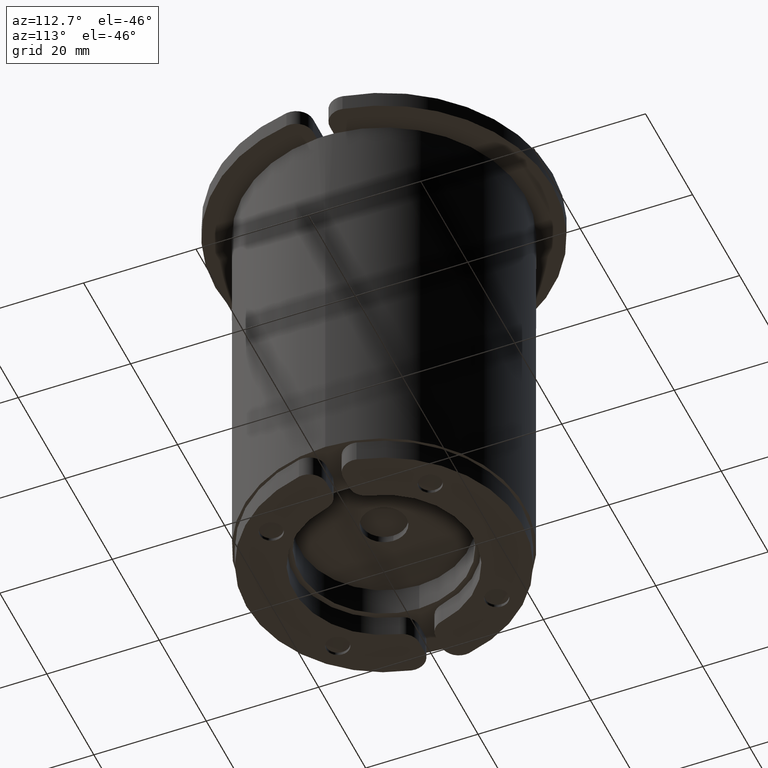
[diagram: clean part render]
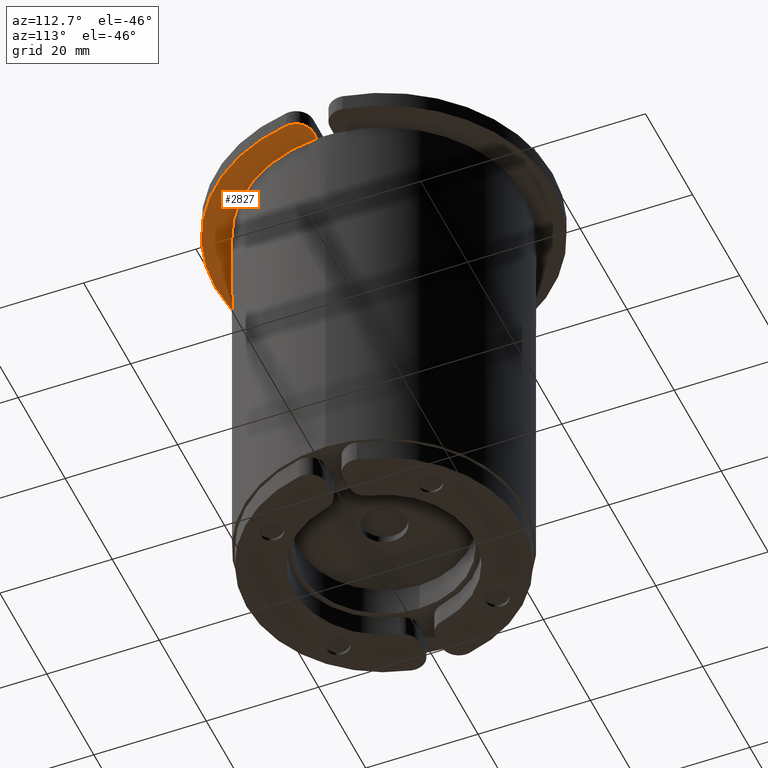
[diagram: same view with one face highlighted and labeled with its STEP entity id]
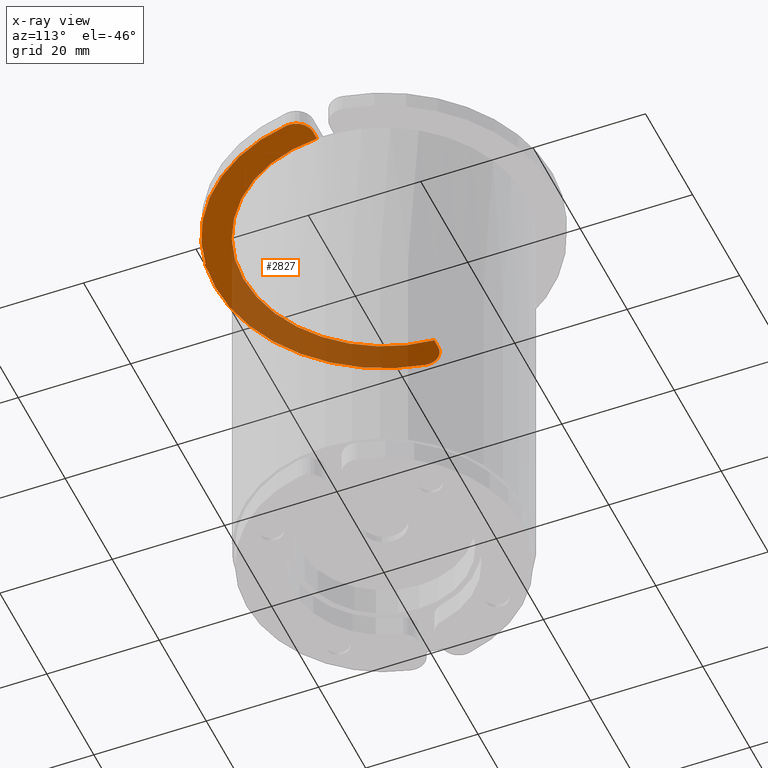
[diagram: x-ray of the same camera — body ghosted, the highlighted face saturated]
A machine part, auxiliary view. The second image highlights one B-rep face of the part: STEP entity #2827.
The next image is the same camera in x-ray: the body ghosted, the highlighted face saturated — about 49% of this face is hidden behind the body in this view.
In plain terms, the highlighted planar face has unit normal (-0, 0, 1).
Its self-contained STEP definition (entity closure, byte-faithful):
#103=LINE('',#4486,#293);
#105=LINE('',#4492,#295);
#293=VECTOR('',#3528,10.);
#295=VECTOR('',#3534,10.);
#520=FACE_OUTER_BOUND('',#692,.T.);
#692=EDGE_LOOP('',(#1855,#1856,#1857,#1858,#1859,#1860));
#879=CIRCLE('',#3057,25.);
#880=CIRCLE('',#3058,3.);
#881=CIRCLE('',#3059,30.);
#882=CIRCLE('',#3060,3.);
#1100=VERTEX_POINT('',#4483);
#1101=VERTEX_POINT('',#4485);
#1102=VERTEX_POINT('',#4489);
#1103=VERTEX_POINT('',#4491);
#1104=VERTEX_POINT('',#4493);
#1105=VERTEX_POINT('',#4495);
#1376=EDGE_CURVE('',#1101,#1100,#103,.T.);
#1378=EDGE_CURVE('',#1100,#1102,#879,.T.);
#1379=EDGE_CURVE('',#1102,#1103,#105,.T.);
#1380=EDGE_CURVE('',#1104,#1103,#880,.T.);
#1381=EDGE_CURVE('',#1104,#1105,#881,.T.);
#1382=EDGE_CURVE('',#1101,#1105,#882,.T.);
#1855=ORIENTED_EDGE('',*,*,#1378,.T.);
#1856=ORIENTED_EDGE('',*,*,#1379,.T.);
#1857=ORIENTED_EDGE('',*,*,#1380,.F.);
#1858=ORIENTED_EDGE('',*,*,#1381,.T.);
#1859=ORIENTED_EDGE('',*,*,#1382,.F.);
#1860=ORIENTED_EDGE('',*,*,#1376,.T.);
#2534=PLANE('',#3056);
#2827=ADVANCED_FACE('',(#520),#2534,.F.);
#3056=AXIS2_PLACEMENT_3D('',#4488,#3530,#3531);
#3057=AXIS2_PLACEMENT_3D('',#4490,#3532,#3533);
#3058=AXIS2_PLACEMENT_3D('',#4494,#3535,#3536);
#3059=AXIS2_PLACEMENT_3D('',#4496,#3537,#3538);
#3060=AXIS2_PLACEMENT_3D('',#4497,#3539,#3540);
#3528=DIRECTION('',(1.,-1.22464679914735E-16,4.03630783555513E-48));
#3530=DIRECTION('center_axis',(-4.03630783555513E-48,4.94305147118598E-64,
1.));
#3531=DIRECTION('ref_axis',(-1.,1.22464679914735E-16,-4.03630783555513E-48));
#3532=DIRECTION('center_axis',(0.,0.,1.));
#3533=DIRECTION('ref_axis',(-0.999799979995999,0.0200000000000001,0.));
#3534=DIRECTION('',(1.,-1.22464679914735E-16,4.03630783555513E-48));
#3535=DIRECTION('center_axis',(-4.03630783555513E-48,4.94305147118598E-64,
1.));
#3536=DIRECTION('ref_axis',(0.763762615825974,0.645497224367901,3.08278103076247E-48));
#3537=DIRECTION('center_axis',(4.03630783555513E-48,-4.94305147118598E-64,
-1.));
#3538=DIRECTION('ref_axis',(-0.998749217771909,-0.0499999999999999,-4.03125929344732E-48));
#3539=DIRECTION('center_axis',(-4.03630783555513E-48,4.94305147118598E-64,
1.));
#3540=DIRECTION('ref_axis',(-0.763762615825974,0.645497224367902,-3.08278103076246E-48));
#4483=CARTESIAN_POINT('',(-24.9549594269356,-1.5,0.));
#4485=CARTESIAN_POINT('',(-26.6223590239483,-1.5,8.88178419700125E-15));
#4486=CARTESIAN_POINT('',(-15.929532322074,-1.5,8.88178419700125E-15));
#4488=CARTESIAN_POINT('Origin',(-1.96310894126406E-14,-13.4352194198437,
8.88178419700125E-15));
#4489=CARTESIAN_POINT('',(24.9549594269356,-1.50000000000001,8.88178419700125E-15));
#4490=CARTESIAN_POINT('Origin',(6.93889390390723E-17,-8.49769420904307E-33,
0.));
#4491=CARTESIAN_POINT('',(26.6223590239483,-1.50000000000001,8.88178419700125E-15));
#4492=CARTESIAN_POINT('',(29.9624765331573,-1.50000000000001,8.88178419700125E-15));
#4493=CARTESIAN_POINT('',(29.5803989154981,-5.,8.88178419700125E-15));
#4494=CARTESIAN_POINT('Origin',(26.6223590239483,-4.5,8.88178419700125E-15));
#4495=CARTESIAN_POINT('',(-29.5803989154981,-5.,8.88178419700125E-15));
#4496=CARTESIAN_POINT('Origin',(-4.57966997657877E-15,-3.33066907387547E-15,
8.88178419700125E-15));
#4497=CARTESIAN_POINT('Origin',(-26.6223590239483,-4.5,8.88178419700125E-15));